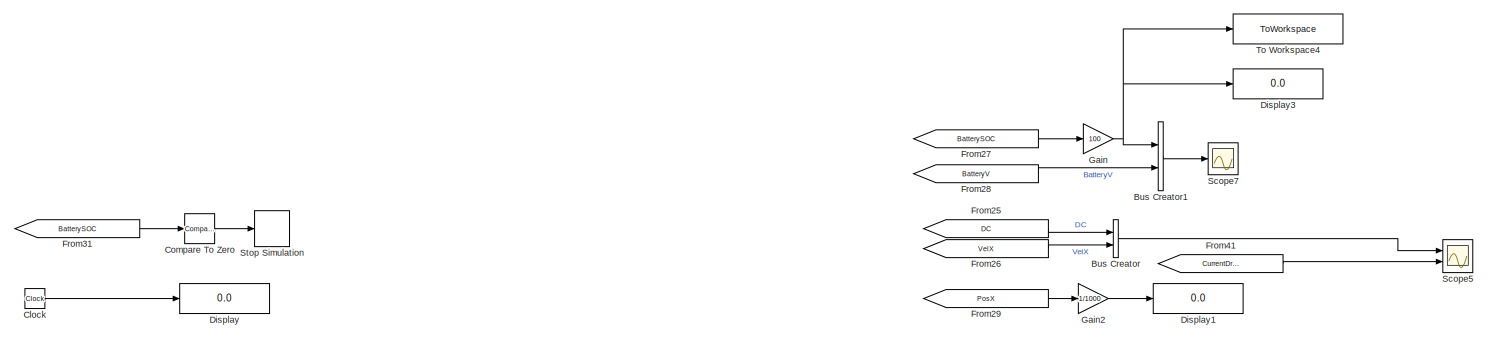
[diagram: root canvas - part 1/8, top center region]
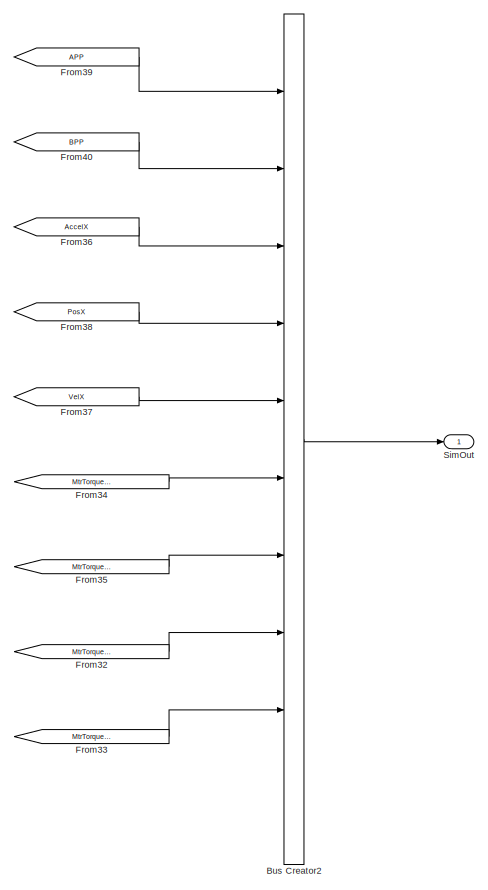
[diagram: root canvas - part 2/8, middle right region]
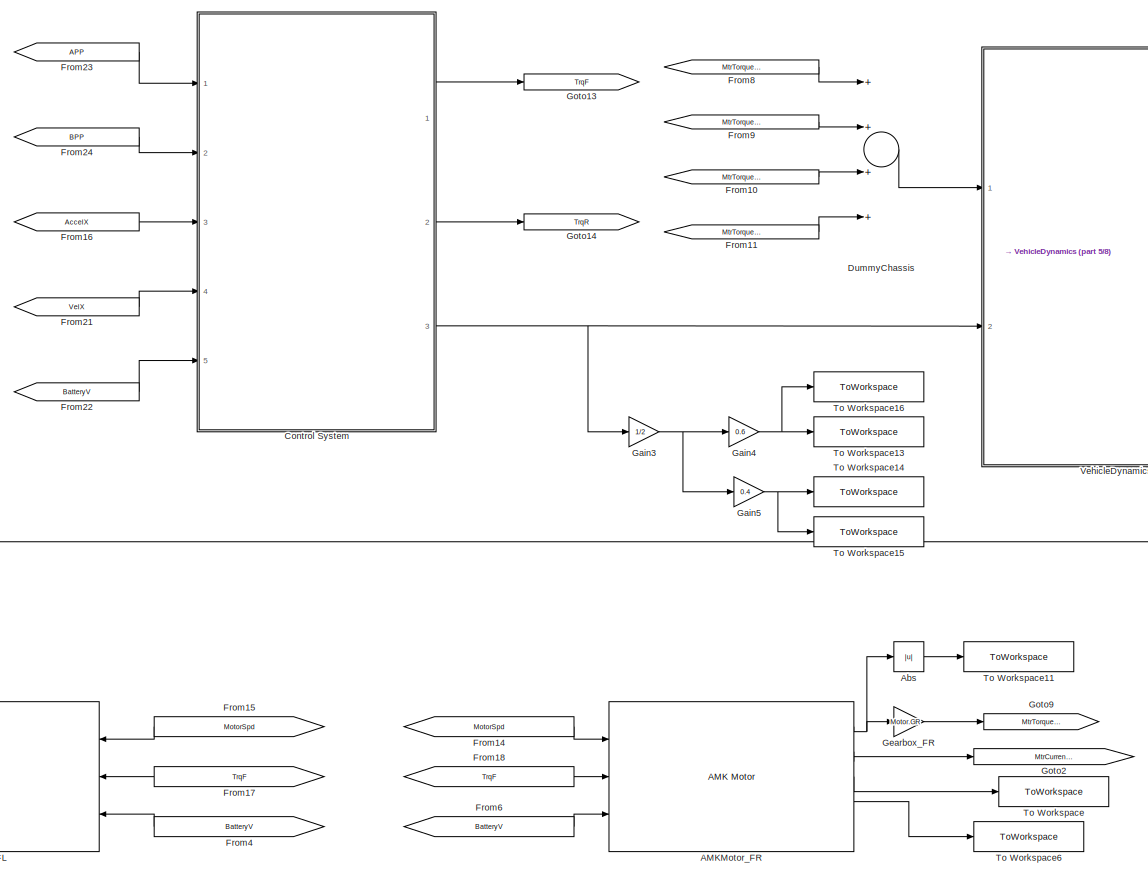
[diagram: root canvas - part 3/8, central region]
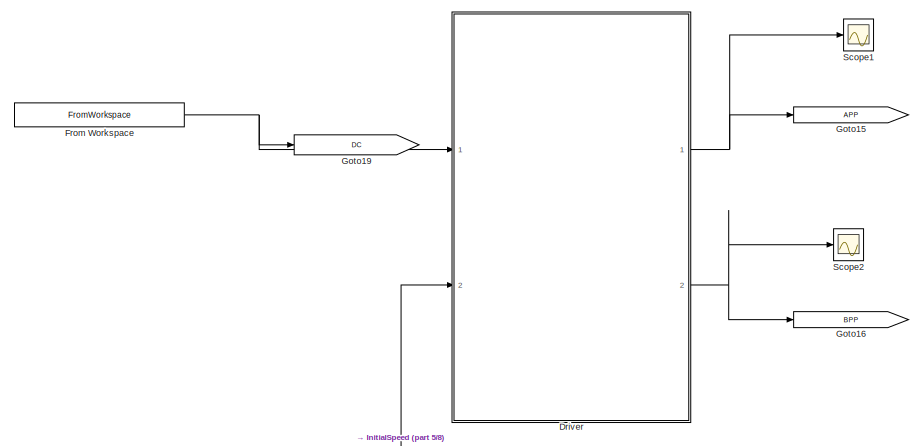
[diagram: root canvas - part 4/8, middle left region]
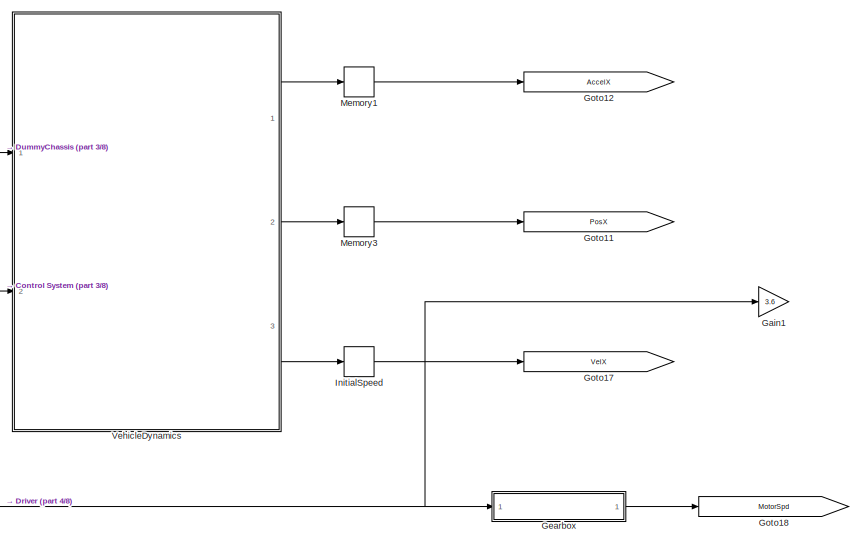
[diagram: root canvas - part 5/8, middle right region]
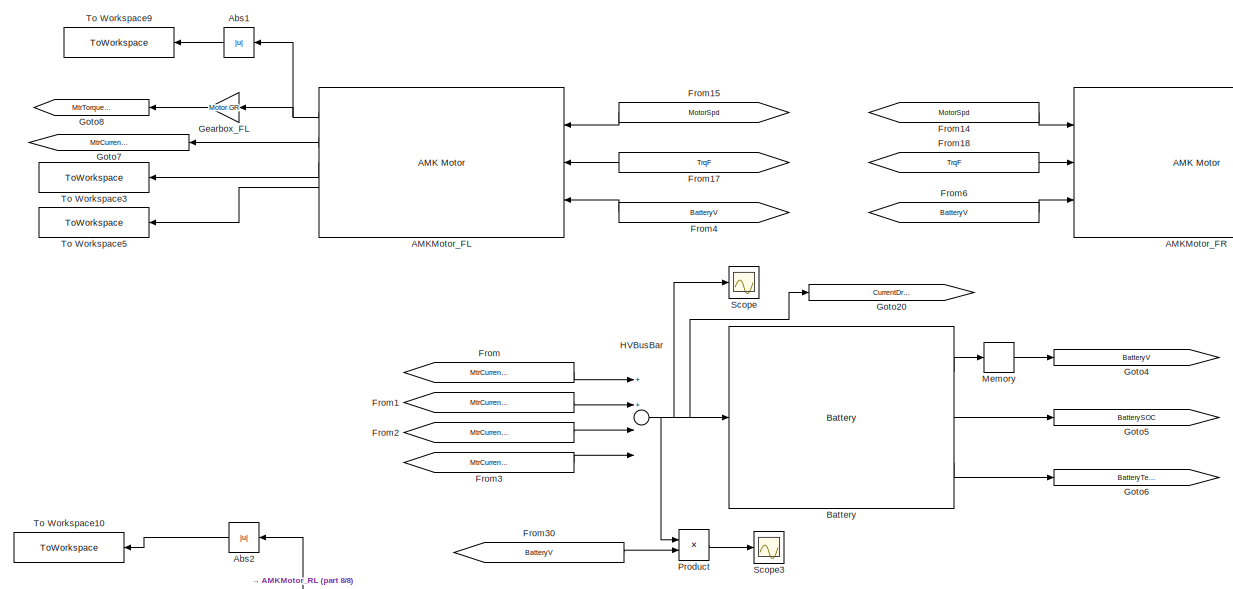
[diagram: root canvas - part 6/8, bottom center region]
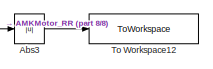
[diagram: root canvas - part 7/8, bottom center region]
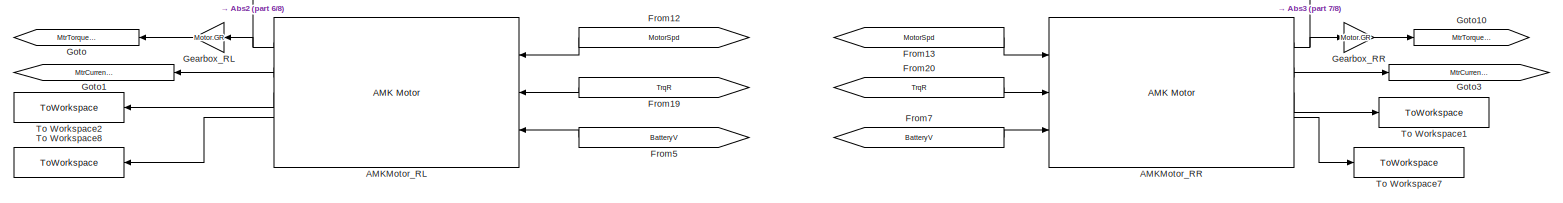
[diagram: root canvas - part 8/8, bottom center region]
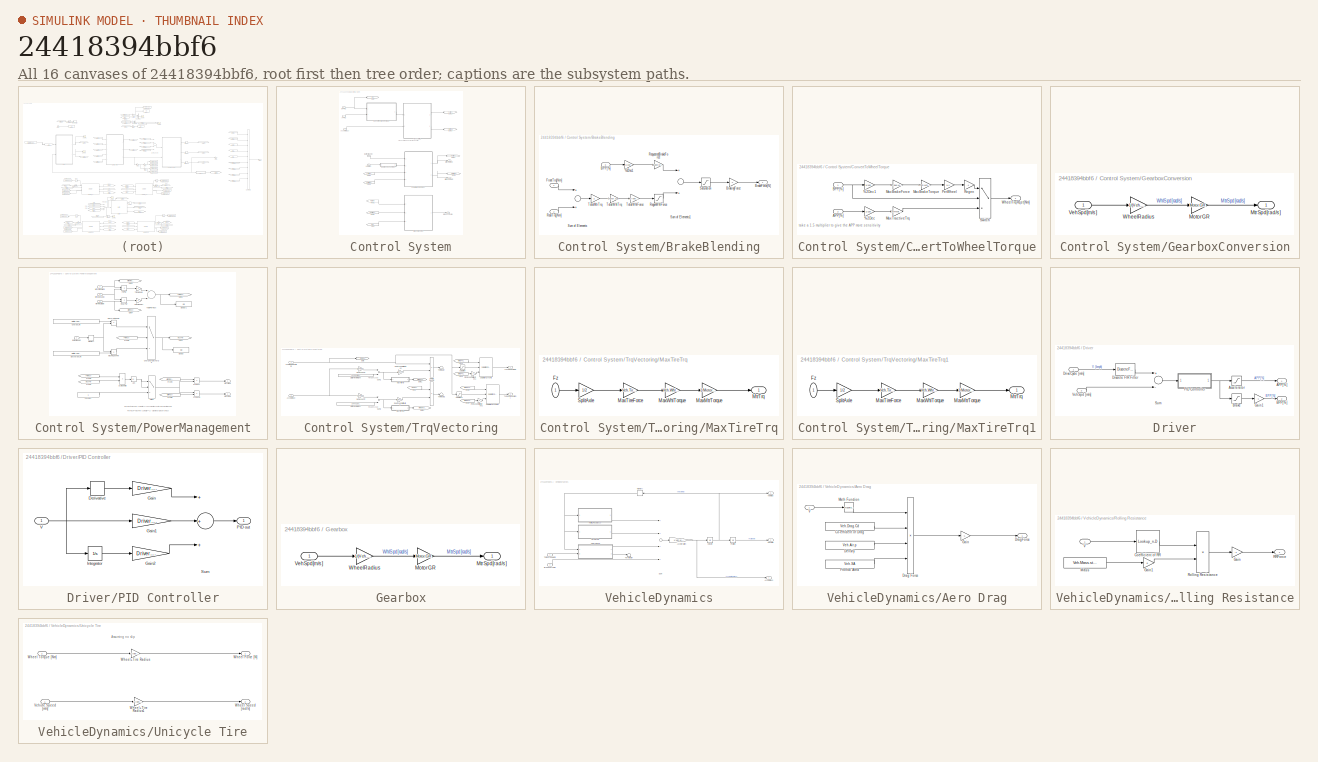
[diagram: thumbnail index - all 16 canvases of the model, root first then tree order]
MODEL slx_24418394bbf6
KIND model
CONFIG AbsTol = auto
CONFIG FixedStep = Sim.TimeStep
CONFIG MaxStep = auto
CONFIG MinStep = auto
CONFIG RelTol = 1e-3
CONFIG SampleTimeConstraint = Unconstrained
CONFIG Solver = ode1
CONFIG SolverMode = Auto
CONFIG SolverName = ode1
CONFIG StartTime = 0.0
CONFIG StopTime = DriveCycle.Tf
BLOCK [Reference] AMKMotor_FL  REF=AMKMotor/WheelAssembly/AMK Motor
  Ports = [3, 4, 0, 0, 0, 0, 1]
  SourceBlock = AMKMotor/WheelAssembly/AMK Motor
  SourceType = SubSystem
BLOCK [Reference] AMKMotor_FR  REF=AMKMotor/WheelAssembly/AMK Motor
  Ports = [3, 4, 0, 0, 0, 0, 1]
  SourceBlock = AMKMotor/WheelAssembly/AMK Motor
  SourceType = SubSystem
BLOCK [Reference] AMKMotor_RL  REF=AMKMotor/WheelAssembly/AMK Motor
  Ports = [3, 4, 0, 0, 0, 0, 1]
  SourceBlock = AMKMotor/WheelAssembly/AMK Motor
  SourceType = SubSystem
BLOCK [Reference] AMKMotor_RR  REF=AMKMotor/WheelAssembly/AMK Motor
  Ports = [3, 4, 0, 0, 0, 0, 1]
  SourceBlock = AMKMotor/WheelAssembly/AMK Motor
  SourceType = SubSystem
BLOCK [Abs] Abs
  SaturateOnIntegerOverflow = off
BLOCK [Abs] Abs1
  SaturateOnIntegerOverflow = off
BLOCK [Abs] Abs2
  SaturateOnIntegerOverflow = off
BLOCK [Abs] Abs3
  SaturateOnIntegerOverflow = off
BLOCK [Reference] Battery  REF=Battery/Battery
  Ports = [1, 3]
  SourceBlock = Battery/Battery
  SourceType = SubSystem
BLOCK [BusCreator] Bus Creator
  DisplayOption = bar
  Inputs = 2
  Ports = [2, 1]
BLOCK [BusCreator] Bus Creator1
  DisplayOption = bar
  Inputs = 2
  Ports = [2, 1]
BLOCK [BusCreator] Bus Creator2
  DisplayOption = bar
  Inputs = 10
  Ports = [10, 1]
BLOCK [Clock] Clock
BLOCK [Reference] Compare To Zero  REF=simulink/Logic and Bit
Operations/Compare
To Zero
  OutDataTypeStr = boolean
  Ports = [1, 1]
  SourceBlock = simulink/Logic and Bit\nOperations/Compare\nTo Zero
  SourceType = Compare To Zero
  ZeroCross = on
  relop = <
BLOCK [SubSystem] Control System
  Ports = [5, 3]
  RequestExecContextInheritance = off
BLOCK [Inport] Control System/APP[%]
  IconDisplay = Port number
BLOCK [Inport] Control System/AccelX[m//s2]
  IconDisplay = Port number
  Port = 3
BLOCK [Inport] Control System/BPP[%]
  IconDisplay = Port number
  Port = 2
BLOCK [Inport] Control System/BattVoltage[V]
  IconDisplay = Port number
  Port = 5
BLOCK [SubSystem] Control System/BrakeBlending
  Ports = [3, 1]
  RequestExecContextInheritance = off
BLOCK [Gain] Control System/BrakeBlending/%2Dec1
  Gain = 1/100
  OutDataTypeStr = Inherit: Inherit via internal rule
  ParamDataTypeStr = Inherit: Inherit via internal rule
  SaturateOnIntegerOverflow = off
BLOCK [Inport] Control System/BrakeBlending/BPP[%]
  IconDisplay = Port number
  Port = 3
BLOCK [Outport] Control System/BrakeBlending/BrakeForce[N]
  IconDisplay = Port number
BLOCK [Gain] Control System/BrakeBlending/BrakingForce
  Gain = -1
  OutDataTypeStr = Inherit: Inherit via internal rule
  ParamDataTypeStr = Inherit: Inherit via internal rule
  SaturateOnIntegerOverflow = off
BLOCK [Inport] Control System/BrakeBlending/FrontTrq[Nm]
  IconDisplay = Port number
BLOCK [Inport] Control System/BrakeBlending/RearTrq[Nm]
  IconDisplay = Port number
  Port = 2
BLOCK [Saturate] Control System/BrakeBlending/RegenWhlForce
  InputPortMap = u0
  LowerLimit = -inf
  Ports = [1, 1]
  UpperLimit = 0
BLOCK [Gain] Control System/BrakeBlending/RequestedBrakeForce
  Gain = Brake.MaxForce
  OutDataTypeStr = Inherit: Inherit via internal rule
  ParamDataTypeStr = Inherit: Inherit via internal rule
  SaturateOnIntegerOverflow = off
BLOCK [Saturate] Control System/BrakeBlending/Saturation
  InputPortMap = u0
  LowerLimit = 0
  Ports = [1, 1]
  UpperLimit = inf
BLOCK [Sum] Control System/BrakeBlending/Sum of Elements
  InputSameDT = off
  Inputs = 2
  OutDataTypeStr = Inherit: Inherit via internal rule
  Ports = [2, 1]
  SaturateOnIntegerOverflow = off
BLOCK [Sum] Control System/BrakeBlending/Sum of Elements1
  InputSameDT = off
  OutDataTypeStr = Inherit: Inherit via internal rule
  Ports = [2, 1]
  SaturateOnIntegerOverflow = off
BLOCK [Gain] Control System/BrakeBlending/TotalMtrTrq
  Gain = 2
  OutDataTypeStr = Inherit: Inherit via internal rule
  ParamDataTypeStr = Inherit: Inherit via internal rule
  SaturateOnIntegerOverflow = off
BLOCK [Gain] Control System/BrakeBlending/TotalWhlForce
  Gain = 1/(Veh.Whl.r + Veh.Whl.SidewallH)
  OutDataTypeStr = Inherit: Inherit via internal rule
  ParamDataTypeStr = Inherit: Inherit via internal rule
  SaturateOnIntegerOverflow = off
BLOCK [Gain] Control System/BrakeBlending/TotalWhlTrq
  Gain = Motor.GR
  OutDataTypeStr = Inherit: Inherit via internal rule
  ParamDataTypeStr = Inherit: Inherit via internal rule
  SaturateOnIntegerOverflow = off
BLOCK [Outport] Control System/BrakeForce[N]
  IconDisplay = Port number
  Port = 3
BLOCK [SubSystem] Control System/ConvertToWheelTorque
  Ports = [2, 1]
  RequestExecContextInheritance = off
BLOCK [Gain] Control System/ConvertToWheelTorque/%2Dec
  Gain = 1/100
  OutDataTypeStr = Inherit: Inherit via internal rule
  ParamDataTypeStr = Inherit: Inherit via internal rule
  SaturateOnIntegerOverflow = off
BLOCK [Gain] Control System/ConvertToWheelTorque/%2Dec1
  Gain = 1/100
  OutDataTypeStr = Inherit: Inherit via internal rule
  ParamDataTypeStr = Inherit: Inherit via internal rule
  SaturateOnIntegerOverflow = off
BLOCK [Inport] Control System/ConvertToWheelTorque/APP[%]
  IconDisplay = Port number
  Port = 2
BLOCK [Inport] Control System/ConvertToWheelTorque/BPP[%]
  IconDisplay = Port number
BLOCK [Gain] Control System/ConvertToWheelTorque/MaxBrakeForce
  Gain = Brake.MaxForce
  OutDataTypeStr = Inherit: Inherit via internal rule
  ParamDataTypeStr = Inherit: Inherit via internal rule
  SaturateOnIntegerOverflow = off
BLOCK [Gain] Control System/ConvertToWheelTorque/MaxBrakeTorque
  Gain = Veh.Whl.r + Veh.Whl.SidewallH
  OutDataTypeStr = Inherit: Inherit via internal rule
  ParamDataTypeStr = Inherit: Inherit via internal rule
  SaturateOnIntegerOverflow = off
BLOCK [Gain] Control System/ConvertToWheelTorque/MaxTractiveTrq 
  Gain = 1.5*Motor.PeakTrq
  OutDataTypeStr = Inherit: Inherit via internal rule
  ParamDataTypeStr = Inherit: Inherit via internal rule
  SaturateOnIntegerOverflow = off
BLOCK [Gain] Control System/ConvertToWheelTorque/PerWheel
  Gain = 1/4
  OutDataTypeStr = Inherit: Inherit via internal rule
  ParamDataTypeStr = Inherit: Inherit via internal rule
  SaturateOnIntegerOverflow = off
BLOCK [Gain] Control System/ConvertToWheelTorque/Regen
  Gain = -1
  OutDataTypeStr = Inherit: Inherit via internal rule
  ParamDataTypeStr = Inherit: Inherit via internal rule
  SaturateOnIntegerOverflow = off
BLOCK [Switch] Control System/ConvertToWheelTorque/Switch
  Criteria = u2 > Threshold
  InputSameDT = off
  SaturateOnIntegerOverflow = off
BLOCK [Outport] Control System/ConvertToWheelTorque/WheelTrqRqst[Nm]
  IconDisplay = Port number
BLOCK [From] Control System/From
  GotoTag = BPP
BLOCK [From] Control System/From1
  GotoTag = PMMtrFnt
BLOCK [From] Control System/From2
  GotoTag = TVMtrFnt
BLOCK [From] Control System/From3
  GotoTag = TVMtrRear
BLOCK [From] Control System/From4
  GotoTag = PMMtrRear
BLOCK [SubSystem] Control System/GearboxConversion
  Ports = [1, 1]
  RequestExecContextInheritance = off
BLOCK [Gain] Control System/GearboxConversion/MotorGR
  Gain = Motor.GR
  OutDataTypeStr = Inherit: Inherit via internal rule
  ParamDataTypeStr = Inherit: Inherit via internal rule
  SaturateOnIntegerOverflow = off
BLOCK [Outport] Control System/GearboxConversion/MtrSpd[rad//s]
  IconDisplay = Port number
BLOCK [Inport] Control System/GearboxConversion/VehSpd[m//s]
  IconDisplay = Port number
BLOCK [Gain] Control System/GearboxConversion/WheelRadius
  Gain = 1/(Veh.Whl.r + Veh.Whl.SidewallH)
  OutDataTypeStr = Inherit: Inherit via internal rule
  ParamDataTypeStr = Inherit: Inherit via internal rule
  SaturateOnIntegerOverflow = off
BLOCK [Goto] Control System/Goto
  GotoTag = BPP
BLOCK [Goto] Control System/Goto1
  GotoTag = TVMtrFnt
BLOCK [Goto] Control System/Goto2
  GotoTag = PMMtrFnt
BLOCK [Goto] Control System/Goto3
  GotoTag = TVMtrRear
BLOCK [Goto] Control System/Goto4
  GotoTag = PMMtrRear
BLOCK [Outport] Control System/MtrFntTrq[Nm]
  IconDisplay = Port number
BLOCK [Outport] Control System/MtrRearTrq[Nm]
  IconDisplay = Port number
  Port = 2
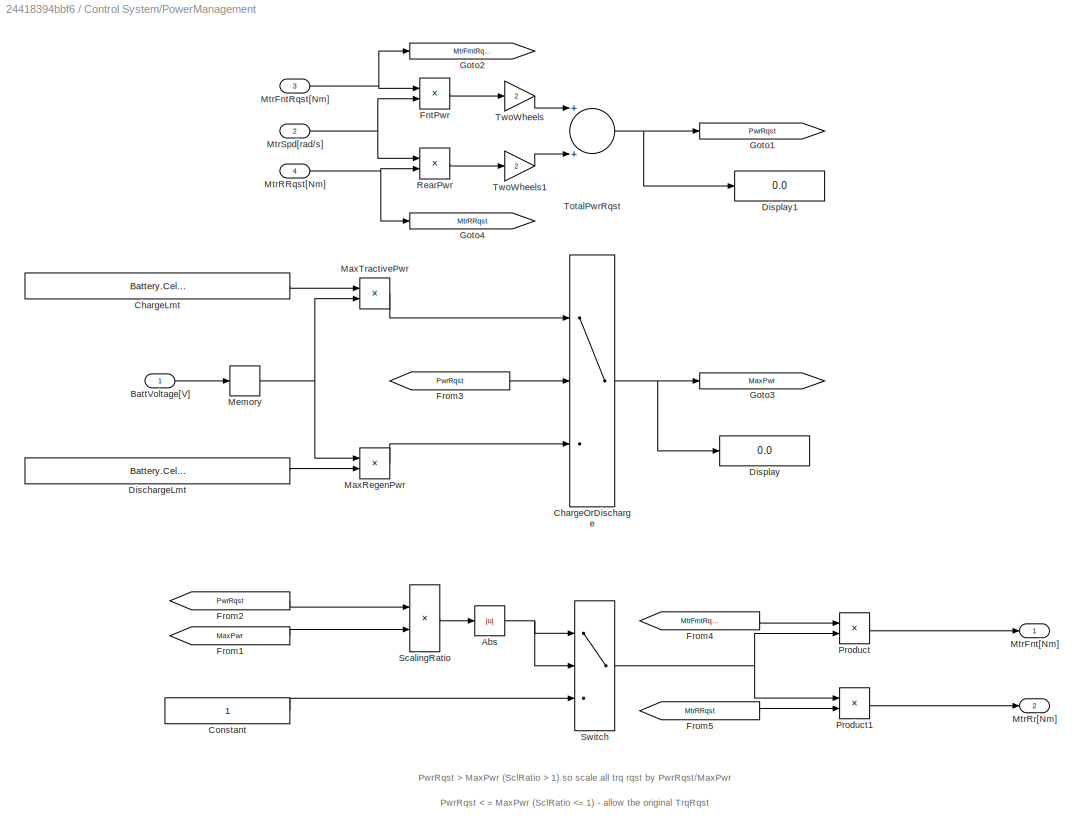
BLOCK [SubSystem] Control System/PowerManagement
  Ports = [4, 2]
  RequestExecContextInheritance = off
BLOCK [Abs] Control System/PowerManagement/Abs
  SaturateOnIntegerOverflow = off
BLOCK [Inport] Control System/PowerManagement/BattVoltage[V]
  IconDisplay = Port number
BLOCK [Constant] Control System/PowerManagement/ChargeLmt
  Value = Battery.Cell.CrntLmt.Chrg * Battery.Cell.Qfull/3600
BLOCK [Switch] Control System/PowerManagement/ChargeOrDischarge
  Criteria = u2 > Threshold
  InputSameDT = off
  SaturateOnIntegerOverflow = off
BLOCK [Constant] Control System/PowerManagement/Constant
BLOCK [Constant] Control System/PowerManagement/DischargeLmt
  Value = Battery.Cell.CrntLmt.Dschrg * Battery.Cell.Qfull/3600
BLOCK [Display] Control System/PowerManagement/Display
  Decimation = 1
  Ports = [1]
BLOCK [Display] Control System/PowerManagement/Display1
  Decimation = 1
  Ports = [1]
BLOCK [Product] Control System/PowerManagement/FntPwr
  InputSameDT = off
  OutDataTypeStr = Inherit: Inherit via internal rule
  Ports = [2, 1]
  RndMeth = Floor
  SaturateOnIntegerOverflow = off
BLOCK [From] Control System/PowerManagement/From1
  GotoTag = MaxPwr
BLOCK [From] Control System/PowerManagement/From2
  GotoTag = PwrRqst
BLOCK [From] Control System/PowerManagement/From3
  GotoTag = PwrRqst
BLOCK [From] Control System/PowerManagement/From4
  GotoTag = MtrFrntRqst
BLOCK [From] Control System/PowerManagement/From5
  GotoTag = MtrRRqst
BLOCK [Goto] Control System/PowerManagement/Goto1
  GotoTag = PwrRqst
BLOCK [Goto] Control System/PowerManagement/Goto2
  GotoTag = MtrFrntRqst
BLOCK [Goto] Control System/PowerManagement/Goto3
  GotoTag = MaxPwr
BLOCK [Goto] Control System/PowerManagement/Goto4
  GotoTag = MtrRRqst
BLOCK [Product] Control System/PowerManagement/MaxRegenPwr
  InputSameDT = off
  OutDataTypeStr = Inherit: Inherit via internal rule
  Ports = [2, 1]
  RndMeth = Floor
  SaturateOnIntegerOverflow = off
BLOCK [Product] Control System/PowerManagement/MaxTractivePwr
  InputSameDT = off
  OutDataTypeStr = Inherit: Inherit via internal rule
  Ports = [2, 1]
  RndMeth = Floor
  SaturateOnIntegerOverflow = off
BLOCK [Memory] Control System/PowerManagement/Memory
  X0 = 600
BLOCK [Inport] Control System/PowerManagement/MtrFntRqst[Nm]
  IconDisplay = Port number
  Port = 3
BLOCK [Outport] Control System/PowerManagement/MtrFnt[Nm]
  IconDisplay = Port number
BLOCK [Inport] Control System/PowerManagement/MtrRRqst[Nm]
  IconDisplay = Port number
  Port = 4
BLOCK [Outport] Control System/PowerManagement/MtrRr[Nm]
  IconDisplay = Port number
  Port = 2
BLOCK [Inport] Control System/PowerManagement/MtrSpd[rad//s]
  IconDisplay = Port number
  Port = 2
BLOCK [Product] Control System/PowerManagement/Product
  InputSameDT = off
  Inputs = */
  OutDataTypeStr = Inherit: Inherit via internal rule
  Ports = [2, 1]
  RndMeth = Floor
  SaturateOnIntegerOverflow = off
BLOCK [Product] Control System/PowerManagement/Product1
  InputSameDT = off
  Inputs = /*
  OutDataTypeStr = Inherit: Inherit via internal rule
  Ports = [2, 1]
  RndMeth = Floor
  SaturateOnIntegerOverflow = off
BLOCK [Product] Control System/PowerManagement/RearPwr
  InputSameDT = off
  OutDataTypeStr = Inherit: Inherit via internal rule
  Ports = [2, 1]
  RndMeth = Floor
  SaturateOnIntegerOverflow = off
BLOCK [Product] Control System/PowerManagement/ScalingRatio
  InputSameDT = off
  Inputs = */
  OutDataTypeStr = Inherit: Inherit via internal rule
  Ports = [2, 1]
  RndMeth = Floor
  SaturateOnIntegerOverflow = off
BLOCK [Switch] Control System/PowerManagement/Switch
  Criteria = u2 > Threshold
  InputSameDT = off
  SaturateOnIntegerOverflow = off
  Threshold = 1
BLOCK [Sum] Control System/PowerManagement/TotalPwrRqst
  InputSameDT = off
  OutDataTypeStr = Inherit: Inherit via internal rule
  Ports = [2, 1]
  SaturateOnIntegerOverflow = off
BLOCK [Gain] Control System/PowerManagement/TwoWheels
  Gain = 2
  OutDataTypeStr = Inherit: Inherit via internal rule
  ParamDataTypeStr = Inherit: Inherit via internal rule
  SaturateOnIntegerOverflow = off
BLOCK [Gain] Control System/PowerManagement/TwoWheels1
  Gain = 2
  OutDataTypeStr = Inherit: Inherit via internal rule
  ParamDataTypeStr = Inherit: Inherit via internal rule
  SaturateOnIntegerOverflow = off
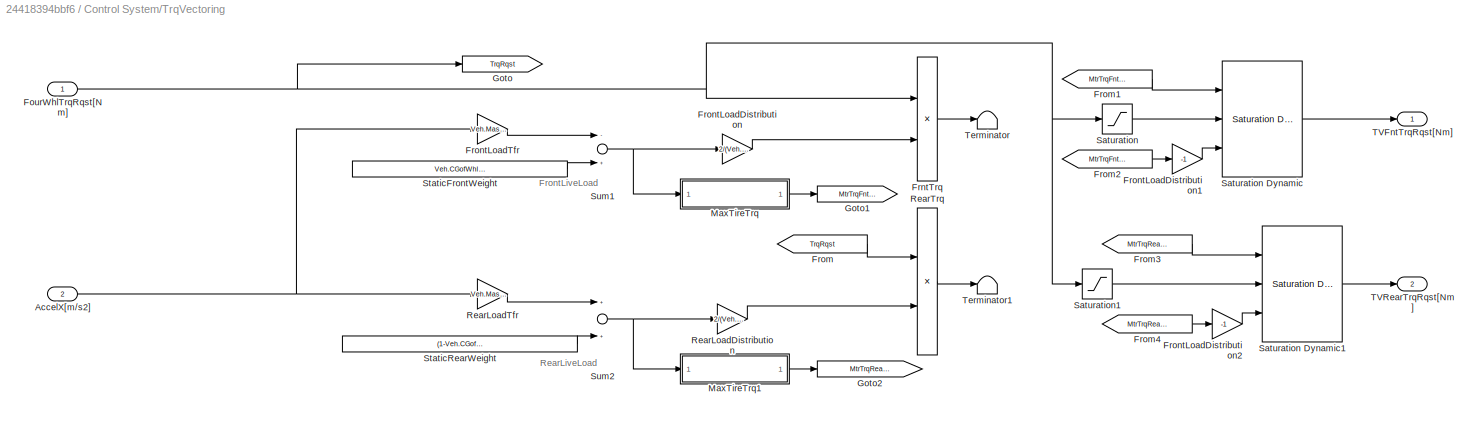
BLOCK [SubSystem] Control System/TrqVectoring
  Ports = [2, 2]
  RequestExecContextInheritance = off
BLOCK [Inport] Control System/TrqVectoring/AccelX[m//s2]
  IconDisplay = Port number
  Port = 2
BLOCK [Inport] Control System/TrqVectoring/FourWhlTrqRqst[Nm]
  IconDisplay = Port number
BLOCK [Product] Control System/TrqVectoring/FrntTrq
  InputSameDT = off
  OutDataTypeStr = Inherit: Inherit via internal rule
  Ports = [2, 1]
  RndMeth = Floor
  SaturateOnIntegerOverflow = off
BLOCK [From] Control System/TrqVectoring/From
  GotoTag = TrqRqst
BLOCK [From] Control System/TrqVectoring/From1
  GotoTag = MtrTrqFnt_Max
BLOCK [From] Control System/TrqVectoring/From2
  GotoTag = MtrTrqFnt_Max
BLOCK [From] Control System/TrqVectoring/From3
  GotoTag = MtrTrqRear_Max
BLOCK [From] Control System/TrqVectoring/From4
  GotoTag = MtrTrqRear_Max
BLOCK [Gain] Control System/TrqVectoring/FrontLoadDistribution
  Gain = 2/(Veh.Mass.static * g)
  OutDataTypeStr = Inherit: Inherit via internal rule
  ParamDataTypeStr = Inherit: Inherit via internal rule
  SaturateOnIntegerOverflow = off
BLOCK [Gain] Control System/TrqVectoring/FrontLoadDistribution1
  Gain = -1
  OutDataTypeStr = Inherit: Inherit via internal rule
  ParamDataTypeStr = Inherit: Inherit via internal rule
  SaturateOnIntegerOverflow = off
BLOCK [Gain] Control System/TrqVectoring/FrontLoadDistribution2
  Gain = -1
  OutDataTypeStr = Inherit: Inherit via internal rule
  ParamDataTypeStr = Inherit: Inherit via internal rule
  SaturateOnIntegerOverflow = off
BLOCK [Gain] Control System/TrqVectoring/FrontLoadTfr
  Gain = Veh.Mass.static*Veh.CGHeight/Veh.WhlBase
  OutDataTypeStr = Inherit: Inherit via internal rule
  ParamDataTypeStr = Inherit: Inherit via internal rule
  SaturateOnIntegerOverflow = off
BLOCK [Goto] Control System/TrqVectoring/Goto
  GotoTag = TrqRqst
BLOCK [Goto] Control System/TrqVectoring/Goto1
  GotoTag = MtrTrqFnt_Max
BLOCK [Goto] Control System/TrqVectoring/Goto2
  GotoTag = MtrTrqRear_Max
BLOCK [SubSystem] Control System/TrqVectoring/MaxTireTrq
  Ports = [1, 1]
  RequestExecContextInheritance = off
BLOCK [Inport] Control System/TrqVectoring/MaxTireTrq/Fz
  IconDisplay = Port number
BLOCK [Gain] Control System/TrqVectoring/MaxTireTrq/MaxMtrTorque
  Gain = 1/Motor.GR
  OutDataTypeStr = Inherit: Inherit via internal rule
  ParamDataTypeStr = Inherit: Inherit via internal rule
  SaturateOnIntegerOverflow = off
BLOCK [Gain] Control System/TrqVectoring/MaxTireTrq/MaxTireForce
  Gain = Veh.Tires.Ks
  OutDataTypeStr = Inherit: Inherit via internal rule
  ParamDataTypeStr = Inherit: Inherit via internal rule
  SaturateOnIntegerOverflow = off
BLOCK [Gain] Control System/TrqVectoring/MaxTireTrq/MaxWhlTorque
  Gain = Veh.Whl.r + Veh.Whl.SidewallH
  OutDataTypeStr = Inherit: Inherit via internal rule
  ParamDataTypeStr = Inherit: Inherit via internal rule
  SaturateOnIntegerOverflow = off
BLOCK [Outport] Control System/TrqVectoring/MaxTireTrq/MtrTrq
  IconDisplay = Port number
BLOCK [Gain] Control System/TrqVectoring/MaxTireTrq/SplitAxle
  Gain = 1/2
  OutDataTypeStr = Inherit: Inherit via internal rule
  ParamDataTypeStr = Inherit: Inherit via internal rule
  SaturateOnIntegerOverflow = off
BLOCK [SubSystem] Control System/TrqVectoring/MaxTireTrq1
  Ports = [1, 1]
  RequestExecContextInheritance = off
BLOCK [Inport] Control System/TrqVectoring/MaxTireTrq1/Fz
  IconDisplay = Port number
BLOCK [Gain] Control System/TrqVectoring/MaxTireTrq1/MaxMtrTorque
  Gain = 1/Motor.GR
  OutDataTypeStr = Inherit: Inherit via internal rule
  ParamDataTypeStr = Inherit: Inherit via internal rule
  SaturateOnIntegerOverflow = off
BLOCK [Gain] Control System/TrqVectoring/MaxTireTrq1/MaxTireForce
  Gain = Veh.Tires.Ks
  OutDataTypeStr = Inherit: Inherit via internal rule
  ParamDataTypeStr = Inherit: Inherit via internal rule
  SaturateOnIntegerOverflow = off
BLOCK [Gain] Control System/TrqVectoring/MaxTireTrq1/MaxWhlTorque
  Gain = Veh.Whl.r + Veh.Whl.SidewallH
  OutDataTypeStr = Inherit: Inherit via internal rule
  ParamDataTypeStr = Inherit: Inherit via internal rule
  SaturateOnIntegerOverflow = off
BLOCK [Outport] Control System/TrqVectoring/MaxTireTrq1/MtrTrq
  IconDisplay = Port number
BLOCK [Gain] Control System/TrqVectoring/MaxTireTrq1/SplitAxle
  Gain = 1/2
  OutDataTypeStr = Inherit: Inherit via internal rule
  ParamDataTypeStr = Inherit: Inherit via internal rule
  SaturateOnIntegerOverflow = off
BLOCK [Gain] Control System/TrqVectoring/RearLoadDistribution
  Gain = 2/(Veh.Mass.static * g)
  OutDataTypeStr = Inherit: Inherit via internal rule
  ParamDataTypeStr = Inherit: Inherit via internal rule
  SaturateOnIntegerOverflow = off
BLOCK [Gain] Control System/TrqVectoring/RearLoadTfr
  Gain = Veh.Mass.static*Veh.CGHeight/Veh.WhlBase
  OutDataTypeStr = Inherit: Inherit via internal rule
  ParamDataTypeStr = Inherit: Inherit via internal rule
  SaturateOnIntegerOverflow = off
BLOCK [Product] Control System/TrqVectoring/RearTrq
  InputSameDT = off
  OutDataTypeStr = Inherit: Inherit via internal rule
  Ports = [2, 1]
  RndMeth = Floor
  SaturateOnIntegerOverflow = off
BLOCK [Saturate] Control System/TrqVectoring/Saturation
  InputPortMap = u0
  LowerLimit = -Motor.PeakTrq
  Ports = [1, 1]
  UpperLimit = Motor.PeakTrq
BLOCK [Reference] Control System/TrqVectoring/Saturation Dynamic  REF=simulink/Discontinuities/Saturation
Dynamic
  DoSatur = off
  LockScale = off
  OutDataType = fixdt(1, 16)
  OutDataTypeStr = Inherit: Same as second input
  OutMax = []
  OutMin = []
  OutScaling = 2^-10
  OutputDataTypeScalingMode = Same as second input
  Ports = [3, 1]
  RndMeth = Floor
  SourceBlock = simulink/Discontinuities/Saturation\nDynamic
  SourceType = Saturation Dynamic
BLOCK [Reference] Control System/TrqVectoring/Saturation Dynamic1  REF=simulink/Discontinuities/Saturation
Dynamic
  DoSatur = off
  LockScale = off
  OutDataType = fixdt(1, 16)
  OutDataTypeStr = Inherit: Same as second input
  OutMax = []
  OutMin = []
  OutScaling = 2^-10
  OutputDataTypeScalingMode = Same as second input
  Ports = [3, 1]
  RndMeth = Floor
  SourceBlock = simulink/Discontinuities/Saturation\nDynamic
  SourceType = Saturation Dynamic
BLOCK [Saturate] Control System/TrqVectoring/Saturation1
  InputPortMap = u0
  LowerLimit = -Motor.PeakTrq
  Ports = [1, 1]
  UpperLimit = Motor.PeakTrq
BLOCK [Constant] Control System/TrqVectoring/StaticFrontWeight
  Value = Veh.CGofWhlBase * Veh.Mass.static * g
BLOCK [Constant] Control System/TrqVectoring/StaticRearWeight
  Value = (1-Veh.CGofWhlBase) * Veh.Mass.static * g
BLOCK [Sum] Control System/TrqVectoring/Sum1
  InputSameDT = off
  Inputs = -+
  OutDataTypeStr = Inherit: Inherit via internal rule
  Ports = [2, 1]
  SaturateOnIntegerOverflow = off
BLOCK [Sum] Control System/TrqVectoring/Sum2
  InputSameDT = off
  OutDataTypeStr = Inherit: Inherit via internal rule
  Ports = [2, 1]
  SaturateOnIntegerOverflow = off
BLOCK [Outport] Control System/TrqVectoring/TVFntTrqRqst[Nm]
  IconDisplay = Port number
BLOCK [Outport] Control System/TrqVectoring/TVRearTrqRqst[Nm]
  IconDisplay = Port number
  Port = 2
BLOCK [Terminator] Control System/TrqVectoring/Terminator
BLOCK [Terminator] Control System/TrqVectoring/Terminator1
BLOCK [Inport] Control System/VelX[m//s]
  IconDisplay = Port number
  Port = 4
BLOCK [Display] Display
  Decimation = 1
  Ports = [1]
BLOCK [Display] Display1
  Decimation = 1
  Ports = [1]
BLOCK [Display] Display3
  Decimation = 1
  Ports = [1]
BLOCK [SubSystem] Driver
  Ports = [2, 2]
  RequestExecContextInheritance = off
BLOCK [Outport] Driver/APP[%]
  IconDisplay = Port number
BLOCK [Saturate] Driver/Accelerator
  InputPortMap = u0
  LowerLimit = 0
  Ports = [1, 1]
  UpperLimit = 100
BLOCK [Outport] Driver/BPP[%]
  IconDisplay = Port number
  Port = 2
BLOCK [Saturate] Driver/Brake
  InputPortMap = u0
  LowerLimit = -100
  Ports = [1, 1]
  UpperLimit = 0
BLOCK [DiscreteFir] Driver/Discrete FIR Filter
  Coefficients = [100:-1:0]/sum([100:-1:0])
  Commented = through
  Ports = [1, 1]
  SampleTime = Sim.TimeStep
BLOCK [Inport] Driver/DriveCycle [m//s]
  IconDisplay = Port number
BLOCK [Gain] Driver/Gain1
  Gain = -1
  OutDataTypeStr = Inherit: Inherit via internal rule
  ParamDataTypeStr = Inherit: Inherit via internal rule
  SaturateOnIntegerOverflow = off
BLOCK [SubSystem] Driver/PID Controller
  Ports = [1, 1]
  RequestExecContextInheritance = off
BLOCK [Derivative] Driver/PID Controller/Derivative
BLOCK [Gain] Driver/PID Controller/Gain
  Gain = Driver.Kd
  OutDataTypeStr = Inherit: Inherit via internal rule
  ParamDataTypeStr = Inherit: Inherit via internal rule
  SaturateOnIntegerOverflow = off
BLOCK [Gain] Driver/PID Controller/Gain1
  Gain = Driver.Kp
  OutDataTypeStr = Inherit: Inherit via internal rule
  ParamDataTypeStr = Inherit: Inherit via internal rule
  SaturateOnIntegerOverflow = off
BLOCK [Gain] Driver/PID Controller/Gain2
  Gain = Driver.Ki
  OutDataTypeStr = Inherit: Inherit via internal rule
  ParamDataTypeStr = Inherit: Inherit via internal rule
  SaturateOnIntegerOverflow = off
BLOCK [Integrator] Driver/PID Controller/Integrator
  Ports = [1, 1]
BLOCK [Outport] Driver/PID Controller/PID out 
  IconDisplay = Port number
BLOCK [Sum] Driver/PID Controller/Sum
  InputSameDT = off
  Inputs = +++
  OutDataTypeStr = Inherit: Inherit via internal rule
  Ports = [3, 1]
  SaturateOnIntegerOverflow = off
BLOCK [Inport] Driver/PID Controller/V
  IconDisplay = Port number
BLOCK [Sum] Driver/Sum
  InputSameDT = off
  Inputs = +-
  OutDataTypeStr = Inherit: Inherit via internal rule
  Ports = [2, 1]
  SaturateOnIntegerOverflow = off
BLOCK [Inport] Driver/VehSpd [m//s]
  IconDisplay = Port number
  Port = 2
BLOCK [Sum] DummyChassis
  InputSameDT = off
  Inputs = ++++
  OutDataTypeStr = Inherit: Inherit via internal rule
  Ports = [4, 1]
  SaturateOnIntegerOverflow = off
BLOCK [From] From
  GotoTag = MtrCurrentFL
BLOCK [FromWorkspace] From Workspace
  SampleTime = 0
  VariableName = DriveCycle.Speed
  ZeroCross = on
BLOCK [From] From1
  GotoTag = MtrCurrentFR
BLOCK [From] From10
  GotoTag = MtrTorqueRL
BLOCK [From] From11
  GotoTag = MtrTorqueRR
BLOCK [From] From12
  GotoTag = MotorSpd
BLOCK [From] From13
  GotoTag = MotorSpd
BLOCK [From] From14
  GotoTag = MotorSpd
BLOCK [From] From15
  GotoTag = MotorSpd
BLOCK [From] From16
  GotoTag = AccelX
BLOCK [From] From17
  GotoTag = TrqF
BLOCK [From] From18
  GotoTag = TrqF
BLOCK [From] From19
  GotoTag = TrqR
BLOCK [From] From2
  GotoTag = MtrCurrentRL
BLOCK [From] From20
  GotoTag = TrqR
BLOCK [From] From21
  GotoTag = VelX
BLOCK [From] From22
  GotoTag = BatteryV
BLOCK [From] From23
  GotoTag = APP
BLOCK [From] From24
  GotoTag = BPP
BLOCK [From] From25
  GotoTag = DC
BLOCK [From] From26
  GotoTag = VelX
BLOCK [From] From27
  GotoTag = BatterySOC
BLOCK [From] From28
  GotoTag = BatteryV
BLOCK [From] From29
  GotoTag = PosX
BLOCK [From] From3
  GotoTag = MtrCurrentRR
BLOCK [From] From30
  GotoTag = BatteryV
BLOCK [From] From31
  GotoTag = BatterySOC
BLOCK [From] From32
  GotoTag = MtrTorqueRL
BLOCK [From] From33
  GotoTag = MtrTorqueRR
BLOCK [From] From34
  GotoTag = MtrTorqueFL
BLOCK [From] From35
  GotoTag = MtrTorqueFR
BLOCK [From] From36
  GotoTag = AccelX
BLOCK [From] From37
  GotoTag = VelX
BLOCK [From] From38
  GotoTag = PosX
BLOCK [From] From39
  GotoTag = APP
BLOCK [From] From4
  GotoTag = BatteryV
BLOCK [From] From40
  GotoTag = BPP
BLOCK [From] From41
  GotoTag = CurrentDraw
BLOCK [From] From5
  GotoTag = BatteryV
BLOCK [From] From6
  GotoTag = BatteryV
BLOCK [From] From7
  GotoTag = BatteryV
BLOCK [From] From8
  GotoTag = MtrTorqueFL
BLOCK [From] From9
  GotoTag = MtrTorqueFR
BLOCK [Gain] Gain
  Gain = 100
  OutDataTypeStr = Inherit: Inherit via internal rule
  ParamDataTypeStr = Inherit: Inherit via internal rule
  SaturateOnIntegerOverflow = off
BLOCK [Gain] Gain1
  Gain = 3.6
  OutDataTypeStr = Inherit: Inherit via internal rule
  ParamDataTypeStr = Inherit: Inherit via internal rule
  SaturateOnIntegerOverflow = off
BLOCK [Gain] Gain2
  Gain = 1/1000
  OutDataTypeStr = Inherit: Inherit via internal rule
  ParamDataTypeStr = Inherit: Inherit via internal rule
  SaturateOnIntegerOverflow = off
BLOCK [Gain] Gain3
  Gain = 1/2
  OutDataTypeStr = Inherit: Inherit via internal rule
  ParamDataTypeStr = Inherit: Inherit via internal rule
  SaturateOnIntegerOverflow = off
BLOCK [Gain] Gain4
  Gain = 0.6
  OutDataTypeStr = Inherit: Inherit via internal rule
  ParamDataTypeStr = Inherit: Inherit via internal rule
  SaturateOnIntegerOverflow = off
BLOCK [Gain] Gain5
  Gain = 0.4
  OutDataTypeStr = Inherit: Inherit via internal rule
  ParamDataTypeStr = Inherit: Inherit via internal rule
  SaturateOnIntegerOverflow = off
BLOCK [SubSystem] Gearbox
  Ports = [1, 1]
  RequestExecContextInheritance = off
BLOCK [Gain] Gearbox/MotorGR
  Gain = Motor.GR
  OutDataTypeStr = Inherit: Inherit via internal rule
  ParamDataTypeStr = Inherit: Inherit via internal rule
  SaturateOnIntegerOverflow = off
BLOCK [Outport] Gearbox/MtrSpd[rad//s]
  IconDisplay = Port number
BLOCK [Inport] Gearbox/VehSpd[m//s]
  IconDisplay = Port number
BLOCK [Gain] Gearbox/WheelRadius
  Gain = 1/(Veh.Whl.r + Veh.Whl.SidewallH)
  OutDataTypeStr = Inherit: Inherit via internal rule
  ParamDataTypeStr = Inherit: Inherit via internal rule
  SaturateOnIntegerOverflow = off
BLOCK [Gain] Gearbox_FL
  Gain = Motor.GR
  OutDataTypeStr = Inherit: Inherit via internal rule
  ParamDataTypeStr = Inherit: Inherit via internal rule
  SaturateOnIntegerOverflow = off
BLOCK [Gain] Gearbox_FR
  Gain = Motor.GR
  OutDataTypeStr = Inherit: Inherit via internal rule
  ParamDataTypeStr = Inherit: Inherit via internal rule
  SaturateOnIntegerOverflow = off
BLOCK [Gain] Gearbox_RL
  Gain = Motor.GR
  OutDataTypeStr = Inherit: Inherit via internal rule
  ParamDataTypeStr = Inherit: Inherit via internal rule
  SaturateOnIntegerOverflow = off
BLOCK [Gain] Gearbox_RR
  Gain = Motor.GR
  OutDataTypeStr = Inherit: Inherit via internal rule
  ParamDataTypeStr = Inherit: Inherit via internal rule
  SaturateOnIntegerOverflow = off
BLOCK [Goto] Goto
  GotoTag = MtrTorqueRL
BLOCK [Goto] Goto1
  GotoTag = MtrCurrentRL
BLOCK [Goto] Goto10
  GotoTag = MtrTorqueRR
BLOCK [Goto] Goto11
  GotoTag = PosX
BLOCK [Goto] Goto12
  GotoTag = AccelX
BLOCK [Goto] Goto13
  GotoTag = TrqF
BLOCK [Goto] Goto14
  GotoTag = TrqR
BLOCK [Goto] Goto15
  GotoTag = APP
BLOCK [Goto] Goto16
  GotoTag = BPP
BLOCK [Goto] Goto17
  GotoTag = VelX
BLOCK [Goto] Goto18
  GotoTag = MotorSpd
BLOCK [Goto] Goto19
  GotoTag = DC
BLOCK [Goto] Goto2
  GotoTag = MtrCurrentFR
BLOCK [Goto] Goto20
  GotoTag = CurrentDraw
BLOCK [Goto] Goto3
  GotoTag = MtrCurrentRR
BLOCK [Goto] Goto4
  GotoTag = BatteryV
BLOCK [Goto] Goto5
  GotoTag = BatterySOC
BLOCK [Goto] Goto6
  GotoTag = BatteryTemp
BLOCK [Goto] Goto7
  GotoTag = MtrCurrentFL
BLOCK [Goto] Goto8
  GotoTag = MtrTorqueFL
BLOCK [Goto] Goto9
  GotoTag = MtrTorqueFR
BLOCK [Sum] HVBusBar
  InputSameDT = off
  Inputs = 4
  OutDataTypeStr = Inherit: Inherit via internal rule
  Ports = [4, 1]
  SaturateOnIntegerOverflow = off
BLOCK [Memory] InitialSpeed
  X0 = DriveCycle.Vi
BLOCK [Memory] Memory
  X0 = 600
BLOCK [Memory] Memory1
BLOCK [Memory] Memory3
BLOCK [Product] Product
  InputSameDT = off
  OutDataTypeStr = Inherit: Inherit via internal rule
  Ports = [2, 1]
  RndMeth = Floor
  SaturateOnIntegerOverflow = off
BLOCK [Scope] Scope
  Floating = off
  LimitDataPoints = off
  NumInputPorts = 1
  Ports = [1]
BLOCK [Scope] Scope1
  Floating = off
  LimitDataPoints = off
  NumInputPorts = 1
  Ports = [1]
  SaveName = ScopeData1
BLOCK [Scope] Scope2
  Floating = off
  LimitDataPoints = off
  NumInputPorts = 1
  Ports = [1]
  SaveName = ScopeData2
BLOCK [Scope] Scope3
  Floating = off
  LimitDataPoints = off
  NumInputPorts = 1
  Ports = [1]
  SaveName = ScopeData3
BLOCK [Scope] Scope5
  Floating = off
  LegendLocations = 0.97261     0.90218    0.018519     0.04439\n0.96937     0.45047    0.021759    0.025072
  LimitDataPoints = off
  NumInputPorts = 2
  Ports = [2]
  SaveName = ScopeData5
  ShowLegends = on
  YMax = 37.5~5
  YMin = 7.5~-5
  ZoomMode = xonly
BLOCK [Scope] Scope7
  Floating = off
  LegendLocations = 0.96821     0.90218    0.022917     0.04439
  LimitDataPoints = off
  NumInputPorts = 1
  Ports = [1]
  SaveName = ScopeData7
  ShowLegends = on
BLOCK [Outport] SimOut
  IconDisplay = Port number
BLOCK [Stop] Stop Simulation
BLOCK [ToWorkspace] To Workspace
  Decimation = 3
  FixptAsFi = on
  MaxDataPoints = inf
  Ports = [1]
  SampleTime = -1
  Save2DSignal = 2-D array (concatenate along first dimension)
  VariableName = MotorLossesFR
BLOCK [ToWorkspace] To Workspace1
  Decimation = 3
  FixptAsFi = on
  MaxDataPoints = inf
  Ports = [1]
  SampleTime = -1
  Save2DSignal = 2-D array (concatenate along first dimension)
  VariableName = MotorLossesRR
BLOCK [ToWorkspace] To Workspace10
  Decimation = 3
  FixptAsFi = on
  MaxDataPoints = inf
  Ports = [1]
  SampleTime = -1
  Save2DSignal = 2-D array (concatenate along first dimension)
  VariableName = MotorTrqRL
BLOCK [ToWorkspace] To Workspace11
  Decimation = 3
  FixptAsFi = on
  MaxDataPoints = inf
  Ports = [1]
  SampleTime = -1
  Save2DSignal = 2-D array (concatenate along first dimension)
  VariableName = MotorTrqFR
BLOCK [ToWorkspace] To Workspace12
  Decimation = 3
  FixptAsFi = on
  MaxDataPoints = inf
  Ports = [1]
  SampleTime = -1
  Save2DSignal = 2-D array (concatenate along first dimension)
  VariableName = MotorTrqRR
BLOCK [ToWorkspace] To Workspace13
  Decimation = 3
  FixptAsFi = on
  MaxDataPoints = inf
  Ports = [1]
  SampleTime = -1
  Save2DSignal = 2-D array (concatenate along first dimension)
  VariableName = QBrakeFR
BLOCK [ToWorkspace] To Workspace14
  Decimation = 3
  FixptAsFi = on
  MaxDataPoints = inf
  Ports = [1]
  SampleTime = -1
  Save2DSignal = 2-D array (concatenate along first dimension)
  VariableName = QBrakeRL
BLOCK [ToWorkspace] To Workspace15
  Decimation = 3
  FixptAsFi = on
  MaxDataPoints = inf
  Ports = [1]
  SampleTime = -1
  Save2DSignal = 2-D array (concatenate along first dimension)
  VariableName = QBrakeRR
BLOCK [ToWorkspace] To Workspace16
  Decimation = 3
  FixptAsFi = on
  MaxDataPoints = inf
  Ports = [1]
  SampleTime = -1
  Save2DSignal = 2-D array (concatenate along first dimension)
  VariableName = QBrakeFL
BLOCK [ToWorkspace] To Workspace2
  Decimation = 3
  FixptAsFi = on
  MaxDataPoints = inf
  Ports = [1]
  SampleTime = -1
  Save2DSignal = 2-D array (concatenate along first dimension)
  VariableName = MotorLossesRL
BLOCK [ToWorkspace] To Workspace3
  Decimation = 3
  FixptAsFi = on
  MaxDataPoints = inf
  Ports = [1]
  SampleTime = -1
  Save2DSignal = 2-D array (concatenate along first dimension)
  VariableName = MotorLossesFL
BLOCK [ToWorkspace] To Workspace4
  FixptAsFi = on
  MaxDataPoints = inf
  Ports = [1]
  SampleTime = -1
  Save2DSignal = 2-D array (concatenate along first dimension)
  VariableName = BatterySOC
BLOCK [ToWorkspace] To Workspace5
  FixptAsFi = on
  MaxDataPoints = inf
  Ports = [1]
  SampleTime = -1
  Save2DSignal = 3-D array (concatenate along third dimension)
  SaveFormat = Timeseries
  VariableName = MotorEffFL
BLOCK [ToWorkspace] To Workspace6
  FixptAsFi = on
  MaxDataPoints = inf
  Ports = [1]
  SampleTime = -1
  Save2DSignal = 3-D array (concatenate along third dimension)
  SaveFormat = Timeseries
  VariableName = MotorEffFR
BLOCK [ToWorkspace] To Workspace7
  FixptAsFi = on
  MaxDataPoints = inf
  Ports = [1]
  SampleTime = -1
  Save2DSignal = 3-D array (concatenate along third dimension)
  SaveFormat = Timeseries
  VariableName = MotorEffRR
BLOCK [ToWorkspace] To Workspace8
  FixptAsFi = on
  MaxDataPoints = inf
  Ports = [1]
  SampleTime = -1
  Save2DSignal = 3-D array (concatenate along third dimension)
  SaveFormat = Timeseries
  VariableName = MotorEffRL
BLOCK [ToWorkspace] To Workspace9
  Decimation = 3
  FixptAsFi = on
  MaxDataPoints = inf
  Ports = [1]
  SampleTime = -1
  Save2DSignal = 2-D array (concatenate along first dimension)
  VariableName = MotorTrqFL
BLOCK [SubSystem] VehicleDynamics
  Ports = [2, 3]
  RequestExecContextInheritance = off
BLOCK [Outport] VehicleDynamics/AccelX[m//s2]
  IconDisplay = Port number
BLOCK [Gain] VehicleDynamics/Acceleration
  Gain = 1/Veh.Mass.inertial
  OutDataTypeStr = Inherit: Inherit via internal rule
  ParamDataTypeStr = Inherit: Inherit via internal rule
  SaturateOnIntegerOverflow = off
BLOCK [SubSystem] VehicleDynamics/Aero Drag
  Ports = [1, 1]
  RequestExecContextInheritance = off
BLOCK [Constant] VehicleDynamics/Aero Drag/Co-efficient of Drag
  Value = Veh.Drag.Cd
BLOCK [Constant] VehicleDynamics/Aero Drag/Density
  Value = Veh.Air.p
BLOCK [Product] VehicleDynamics/Aero Drag/Drag Force
  InputSameDT = off
  Inputs = ****
  OutDataTypeStr = Inherit: Inherit via internal rule
  Ports = [4, 1]
  RndMeth = Floor
  SaturateOnIntegerOverflow = off
BLOCK [Outport] VehicleDynamics/Aero Drag/DragForce
  IconDisplay = Port number
BLOCK [Constant] VehicleDynamics/Aero Drag/Frontal Area
  Value = Veh.SA
BLOCK [Gain] VehicleDynamics/Aero Drag/Gain
  Gain = -1
  OutDataTypeStr = Inherit: Inherit via internal rule
  ParamDataTypeStr = Inherit: Inherit via internal rule
  SaturateOnIntegerOverflow = off
BLOCK [Math] VehicleDynamics/Aero Drag/Math Function
  Operator = magnitude^2
  Ports = [1, 1]
BLOCK [Inport] VehicleDynamics/Aero Drag/V
  IconDisplay = Port number
BLOCK [Inport] VehicleDynamics/BrakeForce[N]
  IconDisplay = Port number
  Port = 2
BLOCK [Memory] VehicleDynamics/Memory
BLOCK [Outport] VehicleDynamics/PosX[m]
  IconDisplay = Port number
  Port = 2
BLOCK [Integrator] VehicleDynamics/Position
  Ports = [1, 1]
BLOCK [SubSystem] VehicleDynamics/Rolling Resistance
  Ports = [1, 1]
  RequestExecContextInheritance = off
BLOCK [Lookup_n-D] VehicleDynamics/Rolling Resistance/Coefficient of RR
  BreakpointsForDimension1 = Veh.Tires.rr.Spd
  BreakpointsForDimension2 = Motor.Efficiency.Spd
  InternalRulePriority = Speed
  NumberOfTableDimensions = 1
  Ports = [1, 1]
  RndMeth = Simplest
  Table = Veh.Tires.rr.rr
BLOCK [Gain] VehicleDynamics/Rolling Resistance/Gain
  Gain = -1
  OutDataTypeStr = Inherit: Inherit via internal rule
  ParamDataTypeStr = Inherit: Inherit via internal rule
  SaturateOnIntegerOverflow = off
BLOCK [Gain] VehicleDynamics/Rolling Resistance/Gain1
  Gain = g
  OutDataTypeStr = Inherit: Inherit via internal rule
  ParamDataTypeStr = Inherit: Inherit via internal rule
  SaturateOnIntegerOverflow = off
BLOCK [Constant] VehicleDynamics/Rolling Resistance/Mass
  Value = Veh.Mass.static
BLOCK [Outport] VehicleDynamics/Rolling Resistance/RRForce
  IconDisplay = Port number
BLOCK [Product] VehicleDynamics/Rolling Resistance/Rolling Resistance
  InputSameDT = off
  OutDataTypeStr = Inherit: Inherit via internal rule
  Ports = [2, 1]
  RndMeth = Floor
  SaturateOnIntegerOverflow = off
BLOCK [Inport] VehicleDynamics/Rolling Resistance/V
  IconDisplay = Port number
BLOCK [Sum] VehicleDynamics/Sum
  InputSameDT = off
  Inputs = ++++
  OutDataTypeStr = Inherit: Inherit via internal rule
  Ports = [4, 1]
  SaturateOnIntegerOverflow = off
BLOCK [Terminator] VehicleDynamics/Terminator
BLOCK [Inport] VehicleDynamics/TotalTorque[Nm]
  IconDisplay = Port number
BLOCK [SubSystem] VehicleDynamics/Unicycle Tire
  Ports = [2, 2]
  RequestExecContextInheritance = off
BLOCK [Inport] VehicleDynamics/Unicycle Tire/Vehicle Speed [m//s]
  IconDisplay = Port number
BLOCK [Outport] VehicleDynamics/Unicycle Tire/Wheel Force [N]
  IconDisplay = Port number
BLOCK [Outport] VehicleDynamics/Unicycle Tire/Wheel Speed [rad//s]
  IconDisplay = Port number
  Port = 2
BLOCK [Inport] VehicleDynamics/Unicycle Tire/Wheel Torque [Nm]
  IconDisplay = Port number
  Port = 2
BLOCK [Gain] VehicleDynamics/Unicycle Tire/Wheel+Tire Radius
  Gain = 1/(Veh.Whl.SidewallH + Veh.Whl.r)
  OutDataTypeStr = Inherit: Inherit via internal rule
  ParamDataTypeStr = Inherit: Inherit via internal rule
  SaturateOnIntegerOverflow = off
BLOCK [Gain] VehicleDynamics/Unicycle Tire/Wheel+Tire Radius1
  Gain = 1/(Veh.Whl.SidewallH + Veh.Whl.r)
  OutDataTypeStr = Inherit: Inherit via internal rule
  ParamDataTypeStr = Inherit: Inherit via internal rule
  SaturateOnIntegerOverflow = off
BLOCK [Outport] VehicleDynamics/VelX[m//s]
  IconDisplay = Port number
  Port = 3
BLOCK [Integrator] VehicleDynamics/Velocity
  InitialCondition = DriveCycle.Vi
  Ports = [1, 1]
ANNOTATION Control System: Trq Vectoring and Traction Control
ANNOTATION Control System/ConvertToWheelTorque: take a 1.5 multiplier to give the APP more sensitivity
ANNOTATION Control System/PowerManagement: PwrRqst < = MaxPwr (SclRatio <= 1) - allow the original TrqRqst
ANNOTATION Control System/PowerManagement: PwrRqst > MaxPwr (SclRatio > 1) so scale all trq rqst by PwrRqst/MaxPwr
ANNOTATION Control System/TrqVectoring: FrontLiveLoad
ANNOTATION Control System/TrqVectoring: RearLiveLoad
ANNOTATION VehicleDynamics/Unicycle Tire: Assuming no slip
NET AMKMotor_FL:1 -> Abs1:1, Gearbox_FL:1
LINE AMKMotor_FL:2 -> Goto7:1
LINE AMKMotor_FL:3 -> To Workspace3:1
LINE AMKMotor_FL:4 -> To Workspace5:1
NET AMKMotor_FR:1 -> Abs:1, Gearbox_FR:1
LINE AMKMotor_FR:2 -> Goto2:1
LINE AMKMotor_FR:3 -> To Workspace:1
LINE AMKMotor_FR:4 -> To Workspace6:1
NET AMKMotor_RL:1 -> Abs2:1, Gearbox_RL:1
LINE AMKMotor_RL:2 -> Goto1:1
LINE AMKMotor_RL:3 -> To Workspace2:1
LINE AMKMotor_RL:4 -> To Workspace8:1
NET AMKMotor_RR:1 -> Abs3:1, Gearbox_RR:1
LINE AMKMotor_RR:2 -> Goto3:1
LINE AMKMotor_RR:3 -> To Workspace1:1
LINE AMKMotor_RR:4 -> To Workspace7:1
LINE Abs1:1 -> To Workspace9:1
LINE Abs2:1 -> To Workspace10:1
LINE Abs3:1 -> To Workspace12:1
LINE Abs:1 -> To Workspace11:1
LINE Battery:1 -> Memory:1
LINE Battery:2 -> Goto5:1
LINE Battery:3 -> Goto6:1
LINE Bus Creator1:1 -> Scope7:1
LINE Bus Creator2:1 -> SimOut:1
LINE Bus Creator:1 -> Scope5:1
LINE Clock:1 -> Display:1
LINE Compare To Zero:1 -> Stop Simulation:1
LINE Control System/APP[%]:1 -> Control System/ConvertToWheelTorque:2
LINE Control System/AccelX[m//s2]:1 -> Control System/TrqVectoring:2
NET Control System/BPP[%]:1 -> Control System/ConvertToWheelTorque:1, Control System/Goto:1
LINE Control System/BattVoltage[V]:1 -> Control System/PowerManagement:1
LINE Control System/BrakeBlending/%2Dec1:1 -> Control System/BrakeBlending/RequestedBrakeForce:1
LINE Control System/BrakeBlending/BPP[%]:1 -> Control System/BrakeBlending/%2Dec1:1
LINE Control System/BrakeBlending/BrakingForce:1 -> Control System/BrakeBlending/BrakeForce[N]:1
LINE Control System/BrakeBlending/FrontTrq[Nm]:1 -> Control System/BrakeBlending/Sum of Elements:1
LINE Control System/BrakeBlending/RearTrq[Nm]:1 -> Control System/BrakeBlending/Sum of Elements:2
LINE Control System/BrakeBlending/RegenWhlForce:1 -> Control System/BrakeBlending/Sum of Elements1:2
LINE Control System/BrakeBlending/RequestedBrakeForce:1 -> Control System/BrakeBlending/Sum of Elements1:1
LINE Control System/BrakeBlending/Saturation:1 -> Control System/BrakeBlending/BrakingForce:1
LINE Control System/BrakeBlending/Sum of Elements1:1 -> Control System/BrakeBlending/Saturation:1
LINE Control System/BrakeBlending/Sum of Elements:1 -> Control System/BrakeBlending/TotalMtrTrq:1
LINE Control System/BrakeBlending/TotalMtrTrq:1 -> Control System/BrakeBlending/TotalWhlTrq:1
LINE Control System/BrakeBlending/TotalWhlForce:1 -> Control System/BrakeBlending/RegenWhlForce:1
LINE Control System/BrakeBlending/TotalWhlTrq:1 -> Control System/BrakeBlending/TotalWhlForce:1
LINE Control System/BrakeBlending:1 -> Control System/BrakeForce[N]:1
LINE Control System/ConvertToWheelTorque/%2Dec1:1 -> Control System/ConvertToWheelTorque/MaxBrakeForce:1
LINE Control System/ConvertToWheelTorque/%2Dec:1 -> Control System/ConvertToWheelTorque/MaxTractiveTrq :1
LINE Control System/ConvertToWheelTorque/APP[%]:1 -> Control System/ConvertToWheelTorque/%2Dec:1
NET Control System/ConvertToWheelTorque/BPP[%]:1 -> Control System/ConvertToWheelTorque/%2Dec1:1, Control System/ConvertToWheelTorque/Switch:2
LINE Control System/ConvertToWheelTorque/MaxBrakeForce:1 -> Control System/ConvertToWheelTorque/MaxBrakeTorque:1
LINE Control System/ConvertToWheelTorque/MaxBrakeTorque:1 -> Control System/ConvertToWheelTorque/PerWheel:1
LINE Control System/ConvertToWheelTorque/MaxTractiveTrq :1 -> Control System/ConvertToWheelTorque/Switch:3
LINE Control System/ConvertToWheelTorque/PerWheel:1 -> Control System/ConvertToWheelTorque/Regen:1
LINE Control System/ConvertToWheelTorque/Regen:1 -> Control System/ConvertToWheelTorque/Switch:1
LINE Control System/ConvertToWheelTorque/Switch:1 -> Control System/ConvertToWheelTorque/WheelTrqRqst[Nm]:1
LINE Control System/ConvertToWheelTorque:1 -> Control System/TrqVectoring:1
LINE Control System/From1:1 -> Control System/BrakeBlending:1
LINE Control System/From2:1 -> Control System/PowerManagement:3
LINE Control System/From3:1 -> Control System/PowerManagement:4
LINE Control System/From4:1 -> Control System/BrakeBlending:2
LINE Control System/From:1 -> Control System/BrakeBlending:3
LINE Control System/GearboxConversion/MotorGR:1 -> Control System/GearboxConversion/MtrSpd[rad//s]:1
LINE Control System/GearboxConversion/VehSpd[m//s]:1 -> Control System/GearboxConversion/WheelRadius:1
LINE Control System/GearboxConversion/WheelRadius:1 -> Control System/GearboxConversion/MotorGR:1
LINE Control System/GearboxConversion:1 -> Control System/PowerManagement:2
NET Control System/PowerManagement/Abs:1 -> Control System/PowerManagement/Switch:1, Control System/PowerManagement/Switch:2
LINE Control System/PowerManagement/BattVoltage[V]:1 -> Control System/PowerManagement/Memory:1
LINE Control System/PowerManagement/ChargeLmt:1 -> Control System/PowerManagement/MaxTractivePwr:1
NET Control System/PowerManagement/ChargeOrDischarge:1 -> Control System/PowerManagement/Display:1, Control System/PowerManagement/Goto3:1
LINE Control System/PowerManagement/Constant:1 -> Control System/PowerManagement/Switch:3
LINE Control System/PowerManagement/DischargeLmt:1 -> Control System/PowerManagement/MaxRegenPwr:2
LINE Control System/PowerManagement/FntPwr:1 -> Control System/PowerManagement/TwoWheels:1
LINE Control System/PowerManagement/From1:1 -> Control System/PowerManagement/ScalingRatio:2
LINE Control System/PowerManagement/From2:1 -> Control System/PowerManagement/ScalingRatio:1
LINE Control System/PowerManagement/From3:1 -> Control System/PowerManagement/ChargeOrDischarge:2
LINE Control System/PowerManagement/From4:1 -> Control System/PowerManagement/Product:1
LINE Control System/PowerManagement/From5:1 -> Control System/PowerManagement/Product1:2
LINE Control System/PowerManagement/MaxRegenPwr:1 -> Control System/PowerManagement/ChargeOrDischarge:3
LINE Control System/PowerManagement/MaxTractivePwr:1 -> Control System/PowerManagement/ChargeOrDischarge:1
NET Control System/PowerManagement/Memory:1 -> Control System/PowerManagement/MaxRegenPwr:1, Control System/PowerManagement/MaxTractivePwr:2
NET Control System/PowerManagement/MtrFntRqst[Nm]:1 -> Control System/PowerManagement/FntPwr:1, Control System/PowerManagement/Goto2:1
NET Control System/PowerManagement/MtrRRqst[Nm]:1 -> Control System/PowerManagement/Goto4:1, Control System/PowerManagement/RearPwr:2
NET Control System/PowerManagement/MtrSpd[rad//s]:1 -> Control System/PowerManagement/FntPwr:2, Control System/PowerManagement/RearPwr:1
LINE Control System/PowerManagement/Product1:1 -> Control System/PowerManagement/MtrRr[Nm]:1
LINE Control System/PowerManagement/Product:1 -> Control System/PowerManagement/MtrFnt[Nm]:1
LINE Control System/PowerManagement/RearPwr:1 -> Control System/PowerManagement/TwoWheels1:1
LINE Control System/PowerManagement/ScalingRatio:1 -> Control System/PowerManagement/Abs:1
NET Control System/PowerManagement/Switch:1 -> Control System/PowerManagement/Product1:1, Control System/PowerManagement/Product:2
NET Control System/PowerManagement/TotalPwrRqst:1 -> Control System/PowerManagement/Display1:1, Control System/PowerManagement/Goto1:1
LINE Control System/PowerManagement/TwoWheels1:1 -> Control System/PowerManagement/TotalPwrRqst:2
LINE Control System/PowerManagement/TwoWheels:1 -> Control System/PowerManagement/TotalPwrRqst:1
NET Control System/PowerManagement:1 -> Control System/Goto2:1, Control System/MtrFntTrq[Nm]:1
NET Control System/PowerManagement:2 -> Control System/Goto4:1, Control System/MtrRearTrq[Nm]:1
NET Control System/TrqVectoring/AccelX[m//s2]:1 -> Control System/TrqVectoring/FrontLoadTfr:1, Control System/TrqVectoring/RearLoadTfr:1
NET Control System/TrqVectoring/FourWhlTrqRqst[Nm]:1 -> Control System/TrqVectoring/FrntTrq:1, Control System/TrqVectoring/Goto:1, Control System/TrqVectoring/Saturation1:1, Control System/TrqVectoring/Saturation:1
LINE Control System/TrqVectoring/FrntTrq:1 -> Control System/TrqVectoring/Terminator:1
LINE Control System/TrqVectoring/From1:1 -> Control System/TrqVectoring/Saturation Dynamic:1
LINE Control System/TrqVectoring/From2:1 -> Control System/TrqVectoring/FrontLoadDistribution1:1
LINE Control System/TrqVectoring/From3:1 -> Control System/TrqVectoring/Saturation Dynamic1:1
LINE Control System/TrqVectoring/From4:1 -> Control System/TrqVectoring/FrontLoadDistribution2:1
LINE Control System/TrqVectoring/From:1 -> Control System/TrqVectoring/RearTrq:1
LINE Control System/TrqVectoring/FrontLoadDistribution1:1 -> Control System/TrqVectoring/Saturation Dynamic:3
LINE Control System/TrqVectoring/FrontLoadDistribution2:1 -> Control System/TrqVectoring/Saturation Dynamic1:3
LINE Control System/TrqVectoring/FrontLoadDistribution:1 -> Control System/TrqVectoring/FrntTrq:2
LINE Control System/TrqVectoring/FrontLoadTfr:1 -> Control System/TrqVectoring/Sum1:1
LINE Control System/TrqVectoring/MaxTireTrq/Fz:1 -> Control System/TrqVectoring/MaxTireTrq/SplitAxle:1
LINE Control System/TrqVectoring/MaxTireTrq/MaxMtrTorque:1 -> Control System/TrqVectoring/MaxTireTrq/MtrTrq:1
LINE Control System/TrqVectoring/MaxTireTrq/MaxTireForce:1 -> Control System/TrqVectoring/MaxTireTrq/MaxWhlTorque:1
LINE Control System/TrqVectoring/MaxTireTrq/MaxWhlTorque:1 -> Control System/TrqVectoring/MaxTireTrq/MaxMtrTorque:1
LINE Control System/TrqVectoring/MaxTireTrq/SplitAxle:1 -> Control System/TrqVectoring/MaxTireTrq/MaxTireForce:1
LINE Control System/TrqVectoring/MaxTireTrq1/Fz:1 -> Control System/TrqVectoring/MaxTireTrq1/SplitAxle:1
LINE Control System/TrqVectoring/MaxTireTrq1/MaxMtrTorque:1 -> Control System/TrqVectoring/MaxTireTrq1/MtrTrq:1
LINE Control System/TrqVectoring/MaxTireTrq1/MaxTireForce:1 -> Control System/TrqVectoring/MaxTireTrq1/MaxWhlTorque:1
LINE Control System/TrqVectoring/MaxTireTrq1/MaxWhlTorque:1 -> Control System/TrqVectoring/MaxTireTrq1/MaxMtrTorque:1
LINE Control System/TrqVectoring/MaxTireTrq1/SplitAxle:1 -> Control System/TrqVectoring/MaxTireTrq1/MaxTireForce:1
LINE Control System/TrqVectoring/MaxTireTrq1:1 -> Control System/TrqVectoring/Goto2:1
LINE Control System/TrqVectoring/MaxTireTrq:1 -> Control System/TrqVectoring/Goto1:1
LINE Control System/TrqVectoring/RearLoadDistribution:1 -> Control System/TrqVectoring/RearTrq:2
LINE Control System/TrqVectoring/RearLoadTfr:1 -> Control System/TrqVectoring/Sum2:1
LINE Control System/TrqVectoring/RearTrq:1 -> Control System/TrqVectoring/Terminator1:1
LINE Control System/TrqVectoring/Saturation Dynamic1:1 -> Control System/TrqVectoring/TVRearTrqRqst[Nm]:1
LINE Control System/TrqVectoring/Saturation Dynamic:1 -> Control System/TrqVectoring/TVFntTrqRqst[Nm]:1
LINE Control System/TrqVectoring/Saturation1:1 -> Control System/TrqVectoring/Saturation Dynamic1:2
LINE Control System/TrqVectoring/Saturation:1 -> Control System/TrqVectoring/Saturation Dynamic:2
LINE Control System/TrqVectoring/StaticFrontWeight:1 -> Control System/TrqVectoring/Sum1:2
LINE Control System/TrqVectoring/StaticRearWeight:1 -> Control System/TrqVectoring/Sum2:2
NET Control System/TrqVectoring/Sum1:1 -> Control System/TrqVectoring/FrontLoadDistribution:1, Control System/TrqVectoring/MaxTireTrq:1
NET Control System/TrqVectoring/Sum2:1 -> Control System/TrqVectoring/MaxTireTrq1:1, Control System/TrqVectoring/RearLoadDistribution:1
LINE Control System/TrqVectoring:1 -> Control System/Goto1:1
LINE Control System/TrqVectoring:2 -> Control System/Goto3:1
LINE Control System/VelX[m//s]:1 -> Control System/GearboxConversion:1
LINE Control System:1 -> Goto13:1
LINE Control System:2 -> Goto14:1
NET Control System:3 -> Gain3:1, VehicleDynamics:2
LINE Driver/Accelerator:1 -> Driver/APP[%]:1
LINE Driver/Brake:1 -> Driver/Gain1:1
LINE Driver/Discrete FIR Filter:1 -> Driver/Sum:1
LINE Driver/DriveCycle [m//s]:1 -> Driver/Discrete FIR Filter:1
LINE Driver/Gain1:1 -> Driver/BPP[%]:1
LINE Driver/PID Controller/Derivative:1 -> Driver/PID Controller/Gain:1
LINE Driver/PID Controller/Gain1:1 -> Driver/PID Controller/Sum:2
LINE Driver/PID Controller/Gain2:1 -> Driver/PID Controller/Sum:3
LINE Driver/PID Controller/Gain:1 -> Driver/PID Controller/Sum:1
LINE Driver/PID Controller/Integrator:1 -> Driver/PID Controller/Gain2:1
LINE Driver/PID Controller/Sum:1 -> Driver/PID Controller/PID out :1
NET Driver/PID Controller/V:1 -> Driver/PID Controller/Derivative:1, Driver/PID Controller/Gain1:1, Driver/PID Controller/Integrator:1
NET Driver/PID Controller:1 -> Driver/Accelerator:1, Driver/Brake:1
LINE Driver/Sum:1 -> Driver/PID Controller:1
LINE Driver/VehSpd [m//s]:1 -> Driver/Sum:2
NET Driver:1 -> Goto15:1, Scope1:1
NET Driver:2 -> Goto16:1, Scope2:1
LINE DummyChassis:1 -> VehicleDynamics:1
NET From Workspace:1 -> Driver:1, Goto19:1
LINE From10:1 -> DummyChassis:3
LINE From11:1 -> DummyChassis:4
LINE From12:1 -> AMKMotor_RL:1
LINE From13:1 -> AMKMotor_RR:1
LINE From14:1 -> AMKMotor_FR:1
LINE From15:1 -> AMKMotor_FL:1
LINE From16:1 -> Control System:3
LINE From17:1 -> AMKMotor_FL:2
LINE From18:1 -> AMKMotor_FR:2
LINE From19:1 -> AMKMotor_RL:2
LINE From1:1 -> HVBusBar:2
LINE From20:1 -> AMKMotor_RR:2
LINE From21:1 -> Control System:4
LINE From22:1 -> Control System:5
LINE From23:1 -> Control System:1
LINE From24:1 -> Control System:2
LINE From25:1 -> Bus Creator:1
LINE From26:1 -> Bus Creator:2
LINE From27:1 -> Gain:1
LINE From28:1 -> Bus Creator1:2
LINE From29:1 -> Gain2:1
LINE From2:1 -> HVBusBar:3
LINE From30:1 -> Product:2
LINE From31:1 -> Compare To Zero:1
LINE From32:1 -> Bus Creator2:8
LINE From33:1 -> Bus Creator2:9
LINE From34:1 -> Bus Creator2:6
LINE From35:1 -> Bus Creator2:7
LINE From36:1 -> Bus Creator2:3
LINE From37:1 -> Bus Creator2:5
LINE From38:1 -> Bus Creator2:4
LINE From39:1 -> Bus Creator2:1
LINE From3:1 -> HVBusBar:4
LINE From40:1 -> Bus Creator2:2
LINE From41:1 -> Scope5:2
LINE From4:1 -> AMKMotor_FL:3
LINE From5:1 -> AMKMotor_RL:3
LINE From6:1 -> AMKMotor_FR:3
LINE From7:1 -> AMKMotor_RR:3
LINE From8:1 -> DummyChassis:1
LINE From9:1 -> DummyChassis:2
LINE From:1 -> HVBusBar:1
LINE Gain2:1 -> Display1:1
NET Gain3:1 -> Gain4:1, Gain5:1
NET Gain4:1 -> To Workspace13:1, To Workspace16:1
NET Gain5:1 -> To Workspace14:1, To Workspace15:1
NET Gain:1 -> Bus Creator1:1, Display3:1, To Workspace4:1
LINE Gearbox/MotorGR:1 -> Gearbox/MtrSpd[rad//s]:1
LINE Gearbox/VehSpd[m//s]:1 -> Gearbox/WheelRadius:1
LINE Gearbox/WheelRadius:1 -> Gearbox/MotorGR:1
LINE Gearbox:1 -> Goto18:1
LINE Gearbox_FL:1 -> Goto8:1
LINE Gearbox_FR:1 -> Goto9:1
LINE Gearbox_RL:1 -> Goto:1
LINE Gearbox_RR:1 -> Goto10:1
NET HVBusBar:1 -> Battery:1, Goto20:1, Product:1, Scope:1
NET InitialSpeed:1 -> Driver:2, Gain1:1, Gearbox:1, Goto17:1
LINE Memory1:1 -> Goto12:1
LINE Memory3:1 -> Goto11:1
LINE Memory:1 -> Goto4:1
LINE Product:1 -> Scope3:1
NET VehicleDynamics/Acceleration:1 -> VehicleDynamics/AccelX[m//s2]:1, VehicleDynamics/Velocity:1
LINE VehicleDynamics/Aero Drag/Co-efficient of Drag:1 -> VehicleDynamics/Aero Drag/Drag Force:2
LINE VehicleDynamics/Aero Drag/Density:1 -> VehicleDynamics/Aero Drag/Drag Force:3
LINE VehicleDynamics/Aero Drag/Drag Force:1 -> VehicleDynamics/Aero Drag/Gain:1
LINE VehicleDynamics/Aero Drag/Frontal Area:1 -> VehicleDynamics/Aero Drag/Drag Force:4
LINE VehicleDynamics/Aero Drag/Gain:1 -> VehicleDynamics/Aero Drag/DragForce:1
LINE VehicleDynamics/Aero Drag/Math Function:1 -> VehicleDynamics/Aero Drag/Drag Force:1
LINE VehicleDynamics/Aero Drag/V:1 -> VehicleDynamics/Aero Drag/Math Function:1
LINE VehicleDynamics/Aero Drag:1 -> VehicleDynamics/Sum:2
LINE VehicleDynamics/BrakeForce[N]:1 -> VehicleDynamics/Sum:4
NET VehicleDynamics/Memory:1 -> VehicleDynamics/Aero Drag:1, VehicleDynamics/Rolling Resistance:1, VehicleDynamics/Unicycle Tire:1
LINE VehicleDynamics/Position:1 -> VehicleDynamics/PosX[m]:1
LINE VehicleDynamics/Rolling Resistance/Coefficient of RR:1 -> VehicleDynamics/Rolling Resistance/Rolling Resistance:1
LINE VehicleDynamics/Rolling Resistance/Gain1:1 -> VehicleDynamics/Rolling Resistance/Rolling Resistance:2
LINE VehicleDynamics/Rolling Resistance/Gain:1 -> VehicleDynamics/Rolling Resistance/RRForce:1
LINE VehicleDynamics/Rolling Resistance/Mass:1 -> VehicleDynamics/Rolling Resistance/Gain1:1
LINE VehicleDynamics/Rolling Resistance/Rolling Resistance:1 -> VehicleDynamics/Rolling Resistance/Gain:1
LINE VehicleDynamics/Rolling Resistance/V:1 -> VehicleDynamics/Rolling Resistance/Coefficient of RR:1
LINE VehicleDynamics/Rolling Resistance:1 -> VehicleDynamics/Sum:1
LINE VehicleDynamics/Sum:1 -> VehicleDynamics/Acceleration:1
LINE VehicleDynamics/TotalTorque[Nm]:1 -> VehicleDynamics/Unicycle Tire:2
LINE VehicleDynamics/Unicycle Tire/Vehicle Speed [m//s]:1 -> VehicleDynamics/Unicycle Tire/Wheel+Tire Radius1:1
LINE VehicleDynamics/Unicycle Tire/Wheel Torque [Nm]:1 -> VehicleDynamics/Unicycle Tire/Wheel+Tire Radius:1
LINE VehicleDynamics/Unicycle Tire/Wheel+Tire Radius1:1 -> VehicleDynamics/Unicycle Tire/Wheel Speed [rad//s]:1
LINE VehicleDynamics/Unicycle Tire/Wheel+Tire Radius:1 -> VehicleDynamics/Unicycle Tire/Wheel Force [N]:1
LINE VehicleDynamics/Unicycle Tire:1 -> VehicleDynamics/Sum:3
LINE VehicleDynamics/Unicycle Tire:2 -> VehicleDynamics/Terminator:1
NET VehicleDynamics/Velocity:1 -> VehicleDynamics/Memory:1, VehicleDynamics/Position:1, VehicleDynamics/VelX[m//s]:1
LINE VehicleDynamics:1 -> Memory1:1
LINE VehicleDynamics:2 -> Memory3:1
LINE VehicleDynamics:3 -> InitialSpeed:1
note: NET lines group one-source signal fan-out (src -> all destinations, sorted); 1:1 wires keep LINE
